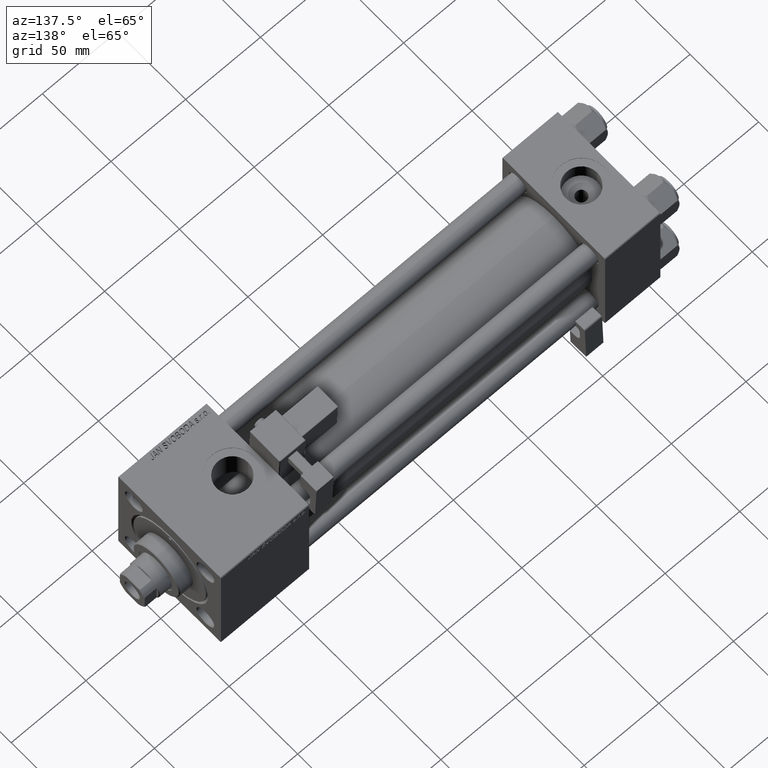
[diagram: clean part render]
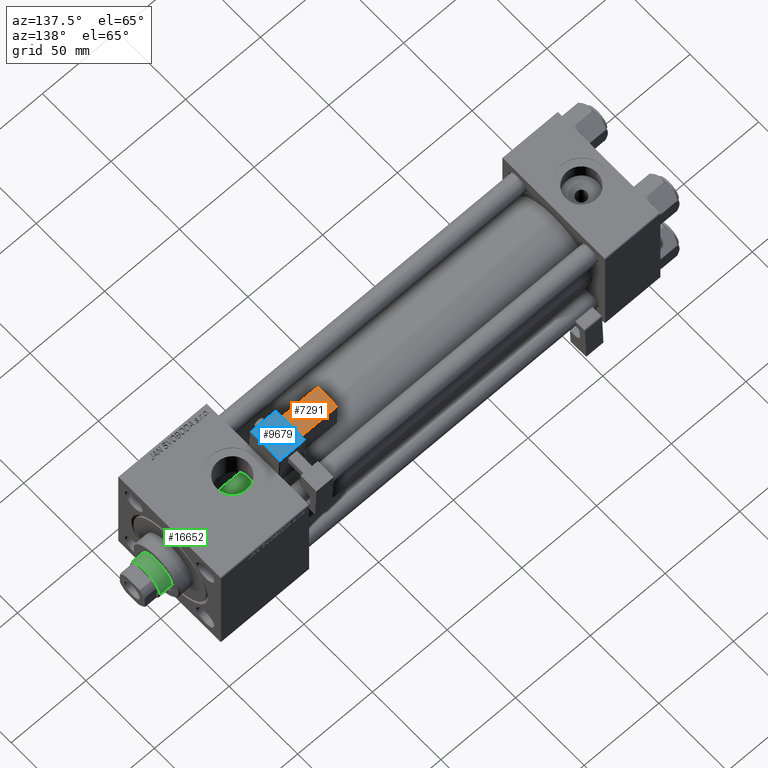
[diagram: same view with three faces highlighted in distinct colors, each labeled with its STEP entity id]
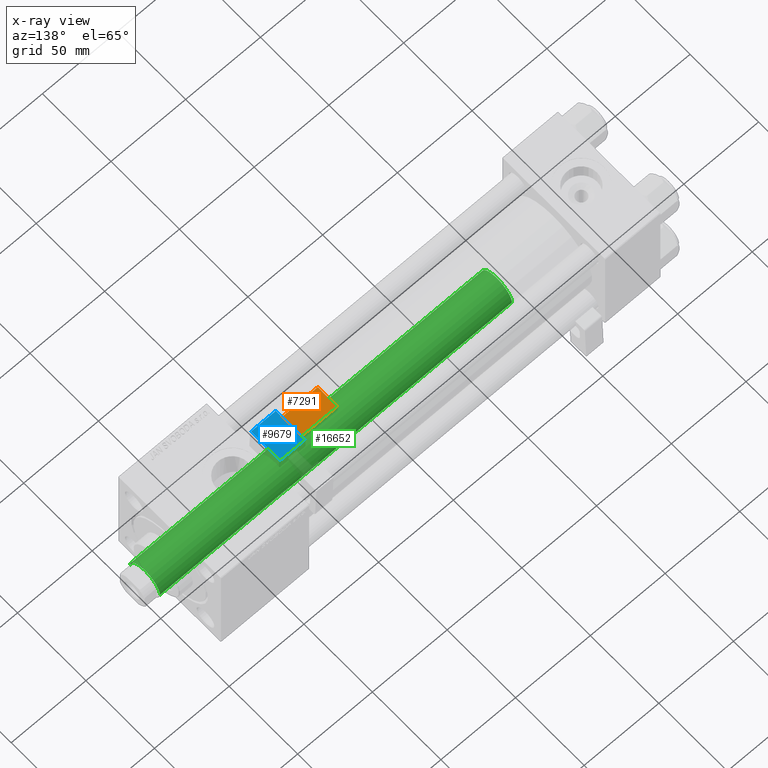
[diagram: x-ray of the same camera — body ghosted, the three highlighted faces saturated]
A machine part, auxiliary view with three faces highlighted in distinct colors.
The next image is the same camera in x-ray (body ghosted, the three faces saturated) — at least one of them is partly hidden behind the body in this view.
Their STEP definitions:

[orange] entity #7291 — the highlighted planar face has unit normal (0, -0.0353, -0.9994).
#825 = FACE_OUTER_BOUND ( 'NONE', #24535, .T. ) ;
#5082 = DIRECTION ( 'NONE',  ( 1.000000000000000000, 0.000000000000000000, 1.334402673828313339E-16 ) ) ;
#7031 = CARTESIAN_POINT ( 'NONE',  ( 33.75000000000000000, -35.75000000000000000, 2.000000000000008438 ) ) ;
#7291 = ADVANCED_FACE ( 'NONE', ( #825 ), #21818, .F. ) ;
#7368 = ORIENTED_EDGE ( 'NONE', *, *, #27752, .T. ) ;
#9592 = LINE ( 'NONE', #13585, #48453 ) ;
#10105 = DIRECTION ( 'NONE',  ( 1.000000000000000000, -0.000000000000000000, 1.334402673828313339E-16 ) ) ;
#13585 = CARTESIAN_POINT ( 'NONE',  ( 9.250000000000005329, -21.24999999999999645, 2.000000000000007105 ) ) ;
#13888 = ORIENTED_EDGE ( 'NONE', *, *, #37682, .T. ) ;
#16769 = DIRECTION ( 'NONE',  ( -1.334402673828313339E-16, -1.156482317317871725E-16, 1.000000000000000000 ) ) ;
#16826 = CARTESIAN_POINT ( 'NONE',  ( 33.25000000000000000, -36.25000000000000000, 2.000000000000008438 ) ) ;
#17595 = VECTOR ( 'NONE', #23253, 1000.000000000000000 ) ;
#17823 = DIRECTION ( 'NONE',  ( -1.543213096464132036E-32, 1.000000000000000000, 1.156482317317871725E-16 ) ) ;
#19351 = CARTESIAN_POINT ( 'NONE',  ( 9.250000000000005329, -21.75000000000000000, 2.000000000000006661 ) ) ;
#19514 = VERTEX_POINT ( 'NONE', #19351 ) ;
#20562 = EDGE_CURVE ( 'NONE', #36987, #29928, #46915, .T. ) ;
#21818 = PLANE ( 'NONE',  #28548 ) ;
#22057 = CARTESIAN_POINT ( 'NONE',  ( 33.25000000000000000, -35.75000000000000000, 2.000000000000008438 ) ) ;
#22923 = EDGE_CURVE ( 'NONE', #19514, #49249, #38536, .T. ) ;
#23253 = DIRECTION ( 'NONE',  ( -1.000000000000000000, 0.000000000000000000, -1.334402673828313339E-16 ) ) ;
#24535 = EDGE_LOOP ( 'NONE', ( #13888, #52099, #7368, #39626 ) ) ;
#25803 = CARTESIAN_POINT ( 'NONE',  ( 33.75000000000000000, -21.75000000000000000, 2.000000000000010214 ) ) ;
#27752 = EDGE_CURVE ( 'NONE', #29928, #19514, #9592, .T. ) ;
#28548 = AXIS2_PLACEMENT_3D ( 'NONE', #33246, #16769, #5082 ) ;
#29928 = VERTEX_POINT ( 'NONE', #38076 ) ;
#32927 = VECTOR ( 'NONE', #10105, 1000.000000000000000 ) ;
#33246 = CARTESIAN_POINT ( 'NONE',  ( 33.75000000000000000, -21.24999999999999645, 2.000000000000010214 ) ) ;
#36987 = VERTEX_POINT ( 'NONE', #22057 ) ;
#37682 = EDGE_CURVE ( 'NONE', #49249, #36987, #41003, .T. ) ;
#38076 = CARTESIAN_POINT ( 'NONE',  ( 9.250000000000005329, -35.75000000000000000, 2.000000000000005329 ) ) ;
#38253 = CARTESIAN_POINT ( 'NONE',  ( 33.25000000000000000, -21.75000000000000000, 2.000000000000010214 ) ) ;
#38536 = LINE ( 'NONE', #25803, #32927 ) ;
#39626 = ORIENTED_EDGE ( 'NONE', *, *, #22923, .T. ) ;
#41003 = LINE ( 'NONE', #16826, #46973 ) ;
#46915 = LINE ( 'NONE', #7031, #17595 ) ;
#46973 = VECTOR ( 'NONE', #49500, 1000.000000000000000 ) ;
#48453 = VECTOR ( 'NONE', #17823, 1000.000000000000000 ) ;
#49249 = VERTEX_POINT ( 'NONE', #38253 ) ;
#49500 = DIRECTION ( 'NONE',  ( 5.473822126268816683E-48, -1.000000000000000000, -1.156482317317871725E-16 ) ) ;
#52099 = ORIENTED_EDGE ( 'NONE', *, *, #20562, .T. ) ;

[blue] entity #9679 — the highlighted planar face has unit normal (0, -0.0353, -0.9994).
#163 = VERTEX_POINT ( 'NONE', #45983 ) ;
#943 = LINE ( 'NONE', #28381, #34615 ) ;
#1108 = EDGE_CURVE ( 'NONE', #12188, #13144, #34559, .T. ) ;
#3998 = AXIS2_PLACEMENT_3D ( 'NONE', #25396, #30140, #50341 ) ;
#7520 = LINE ( 'NONE', #39943, #33261 ) ;
#7948 = DIRECTION ( 'NONE',  ( 1.000000000000000000, -0.000000000000000000, 0.000000000000000000 ) ) ;
#9019 = VECTOR ( 'NONE', #7948, 1000.000000000000000 ) ;
#9174 = PLANE ( 'NONE',  #3998 ) ;
#9679 = ADVANCED_FACE ( 'NONE', ( #17147 ), #9174, .F. ) ;
#9687 = DIRECTION ( 'NONE',  ( -0.000000000000000000, 1.000000000000000000, 0.000000000000000000 ) ) ;
#12188 = VERTEX_POINT ( 'NONE', #40704 ) ;
#13144 = VERTEX_POINT ( 'NONE', #24377 ) ;
#15506 = ORIENTED_EDGE ( 'NONE', *, *, #1108, .T. ) ;
#17147 = FACE_OUTER_BOUND ( 'NONE', #34180, .T. ) ;
#19748 = DIRECTION ( 'NONE',  ( -0.000000000000000000, -1.000000000000000000, -0.000000000000000000 ) ) ;
#19847 = ORIENTED_EDGE ( 'NONE', *, *, #29733, .T. ) ;
#21250 = EDGE_CURVE ( 'NONE', #163, #35605, #48345, .T. ) ;
#24377 = CARTESIAN_POINT ( 'NONE',  ( -8.250000000000003553, -39.25000000000000000, -1.000000000000000222 ) ) ;
#25396 = CARTESIAN_POINT ( 'NONE',  ( 8.750000000000003553, -39.75000000000000000, -1.000000000000000222 ) ) ;
#25797 = CARTESIAN_POINT ( 'NONE',  ( 8.750000000000003553, -39.25000000000000000, -1.000000000000000222 ) ) ;
#26452 = CARTESIAN_POINT ( 'NONE',  ( 8.250000000000003553, -18.25000000000000355, -1.000000000000000222 ) ) ;
#28381 = CARTESIAN_POINT ( 'NONE',  ( -8.250000000000003553, -39.75000000000000000, -1.000000000000000222 ) ) ;
#29733 = EDGE_CURVE ( 'NONE', #35605, #12188, #7520, .T. ) ;
#30140 = DIRECTION ( 'NONE',  ( 0.000000000000000000, 0.000000000000000000, 1.000000000000000000 ) ) ;
#33261 = VECTOR ( 'NONE', #19748, 1000.000000000000000 ) ;
#34180 = EDGE_LOOP ( 'NONE', ( #36699, #19847, #15506, #46842 ) ) ;
#34559 = LINE ( 'NONE', #25797, #50361 ) ;
#34615 = VECTOR ( 'NONE', #9687, 1000.000000000000000 ) ;
#35605 = VERTEX_POINT ( 'NONE', #26452 ) ;
#36699 = ORIENTED_EDGE ( 'NONE', *, *, #21250, .T. ) ;
#39943 = CARTESIAN_POINT ( 'NONE',  ( 8.250000000000003553, -39.75000000000000000, -1.000000000000000222 ) ) ;
#40704 = CARTESIAN_POINT ( 'NONE',  ( 8.250000000000003553, -39.25000000000000000, -1.000000000000000222 ) ) ;
#42001 = DIRECTION ( 'NONE',  ( -1.000000000000000000, -0.000000000000000000, 0.000000000000000000 ) ) ;
#44366 = CARTESIAN_POINT ( 'NONE',  ( 8.750000000000003553, -18.25000000000000355, -1.000000000000000222 ) ) ;
#45983 = CARTESIAN_POINT ( 'NONE',  ( -8.250000000000003553, -18.25000000000000355, -1.000000000000000222 ) ) ;
#46842 = ORIENTED_EDGE ( 'NONE', *, *, #50673, .T. ) ;
#48345 = LINE ( 'NONE', #44366, #9019 ) ;
#50341 = DIRECTION ( 'NONE',  ( 1.000000000000000000, 0.000000000000000000, -0.000000000000000000 ) ) ;
#50361 = VECTOR ( 'NONE', #42001, 1000.000000000000000 ) ;
#50673 = EDGE_CURVE ( 'NONE', #13144, #163, #943, .T. ) ;

[green] entity #16652 — the highlighted cylindrical surface (edge-blend (fillet) strip) has radius 11 mm, axis along (-1, 0, 0).
#500 = AXIS2_PLACEMENT_3D ( 'NONE', #50679, #34989, #14265 ) ;
#2401 = ORIENTED_EDGE ( 'NONE', *, *, #17748, .T. ) ;
#2428 = ORIENTED_EDGE ( 'NONE', *, *, #19224, .T. ) ;
#3029 = VERTEX_POINT ( 'NONE', #46431 ) ;
#5311 = DIRECTION ( 'NONE',  ( 1.000000000000000000, 0.000000000000000000, 0.000000000000000000 ) ) ;
#5899 = CARTESIAN_POINT ( 'NONE',  ( 11.00000000000000000, 1.347111479062088405E-15, 273.4999999999999432 ) ) ;
#7042 = EDGE_CURVE ( 'NONE', #32968, #3029, #43366, .T. ) ;
#9032 = DIRECTION ( 'NONE',  ( 0.000000000000000000, 0.000000000000000000, 1.000000000000000000 ) ) ;
#9293 = CARTESIAN_POINT ( 'NONE',  ( 0.000000000000000000, 0.000000000000000000, 38.00000000000000000 ) ) ;
#14265 = DIRECTION ( 'NONE',  ( 1.000000000000000000, 0.000000000000000000, 0.000000000000000000 ) ) ;
#16652 = ADVANCED_FACE ( 'NONE', ( #45403 ), #41936, .T. ) ;
#17748 = EDGE_CURVE ( 'NONE', #34625, #29093, #49660, .T. ) ;
#18029 = DIRECTION ( 'NONE',  ( -0.000000000000000000, -0.000000000000000000, -1.000000000000000000 ) ) ;
#19224 = EDGE_CURVE ( 'NONE', #29093, #3029, #49840, .T. ) ;
#22384 = CARTESIAN_POINT ( 'NONE',  ( 11.00000000000000000, 1.347111479062088405E-15, 273.9999999999999432 ) ) ;
#24565 = CARTESIAN_POINT ( 'NONE',  ( -11.00000000000000000, 0.000000000000000000, 273.4999999999999432 ) ) ;
#24947 = DIRECTION ( 'NONE',  ( -1.000000000000000000, 0.000000000000000000, 0.000000000000000000 ) ) ;
#29093 = VERTEX_POINT ( 'NONE', #45254 ) ;
#29403 = AXIS2_PLACEMENT_3D ( 'NONE', #50172, #37442, #24947 ) ;
#32027 = ORIENTED_EDGE ( 'NONE', *, *, #7042, .F. ) ;
#32968 = VERTEX_POINT ( 'NONE', #5899 ) ;
#33866 = ORIENTED_EDGE ( 'NONE', *, *, #46888, .T. ) ;
#34625 = VERTEX_POINT ( 'NONE', #24565 ) ;
#34989 = DIRECTION ( 'NONE',  ( 0.000000000000000000, 0.000000000000000000, -1.000000000000000000 ) ) ;
#35388 = DIRECTION ( 'NONE',  ( -0.000000000000000000, -0.000000000000000000, -1.000000000000000000 ) ) ;
#37442 = DIRECTION ( 'NONE',  ( -0.000000000000000000, -0.000000000000000000, -1.000000000000000000 ) ) ;
#41936 = CYLINDRICAL_SURFACE ( 'NONE', #29403, 11.00000000000000000 ) ;
#42141 = VECTOR ( 'NONE', #18029, 1000.000000000000000 ) ;
#43057 = AXIS2_PLACEMENT_3D ( 'NONE', #9293, #9032, #5311 ) ;
#43366 = LINE ( 'NONE', #22384, #48024 ) ;
#45254 = CARTESIAN_POINT ( 'NONE',  ( -11.00000000000000000, 0.000000000000000000, 38.00000000000000000 ) ) ;
#45403 = FACE_OUTER_BOUND ( 'NONE', #51240, .T. ) ;
#46431 = CARTESIAN_POINT ( 'NONE',  ( 11.00000000000000000, 1.347111479062088405E-15, 38.00000000000000000 ) ) ;
#46720 = CARTESIAN_POINT ( 'NONE',  ( -11.00000000000000000, 0.000000000000000000, 273.9999999999999432 ) ) ;
#46888 = EDGE_CURVE ( 'NONE', #32968, #34625, #49739, .T. ) ;
#48024 = VECTOR ( 'NONE', #35388, 1000.000000000000000 ) ;
#49660 = LINE ( 'NONE', #46720, #42141 ) ;
#49739 = CIRCLE ( 'NONE', #500, 11.00000000000000000 ) ;
#49840 = CIRCLE ( 'NONE', #43057, 11.00000000000000000 ) ;
#50172 = CARTESIAN_POINT ( 'NONE',  ( 0.000000000000000000, 0.000000000000000000, 273.9999999999999432 ) ) ;
#50679 = CARTESIAN_POINT ( 'NONE',  ( 0.000000000000000000, 0.000000000000000000, 273.4999999999999432 ) ) ;
#51240 = EDGE_LOOP ( 'NONE', ( #32027, #33866, #2401, #2428 ) ) ;